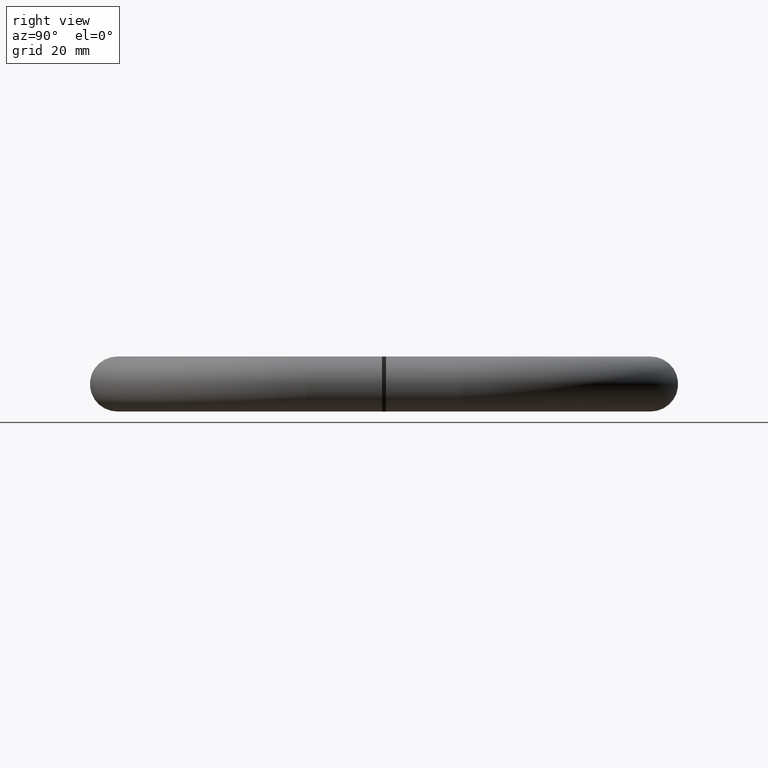
[diagram: clean part render]
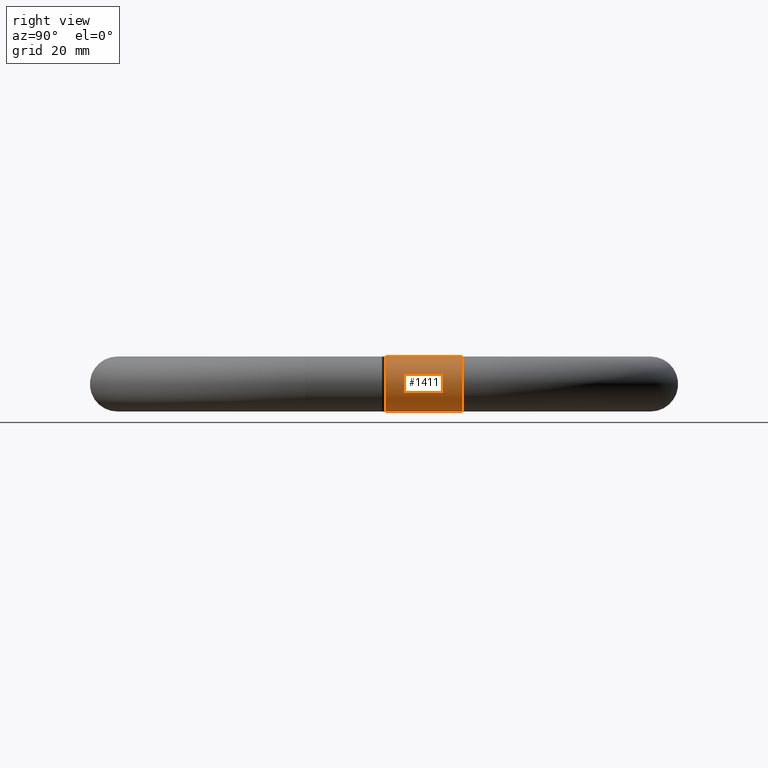
[diagram: same view with one face highlighted and labeled with its STEP entity id]
A machine part, right view. The second image highlights one B-rep face of the part: STEP entity #1411.
In plain terms, the highlighted cylindrical surface (bore or boss wall) has radius 7 mm, axis along (0, -1, 0).
Its self-contained STEP definition (entity closure, byte-faithful):
#204 = AXIS2_PLACEMENT_3D ( 'NONE', #3378, #9660, #8041 ) ;
#212 = CIRCLE ( 'NONE', #7439, 7.000000000000000000 ) ;
#643 = CARTESIAN_POINT ( 'NONE',  ( 48.00000000000000000, 75.50000000000000000, 0.0000000000000000000 ) ) ;
#807 = AXIS2_PLACEMENT_3D ( 'NONE', #7625, #8362, #3687 ) ;
#1076 = EDGE_LOOP ( 'NONE', ( #7927 ) ) ;
#1375 = EDGE_CURVE ( 'NONE', #4075, #4075, #212, .T. ) ;
#1411 = ADVANCED_FACE ( 'NONE', ( #8281, #10078 ), #1934, .T. ) ;
#1512 = CIRCLE ( 'NONE', #204, 7.000000000000000000 ) ;
#1686 = CARTESIAN_POINT ( 'NONE',  ( 48.00000000000000000, 75.50000000000000000, 7.000000000000000000 ) ) ;
#1934 = CYLINDRICAL_SURFACE ( 'NONE', #807, 7.000000000000000000 ) ;
#3378 = CARTESIAN_POINT ( 'NONE',  ( 48.00000000000000000, 95.00000000000001400, 0.0000000000000000000 ) ) ;
#3687 = DIRECTION ( 'NONE',  ( 0.0000000000000000000, 0.0000000000000000000, -1.000000000000000000 ) ) ;
#3957 = CARTESIAN_POINT ( 'NONE',  ( 48.00000000000000000, 95.00000000000001400, -7.000000000000000000 ) ) ;
#4075 = VERTEX_POINT ( 'NONE', #1686 ) ;
#5729 = ORIENTED_EDGE ( 'NONE', *, *, #9685, .F. ) ;
#5902 = EDGE_LOOP ( 'NONE', ( #5729 ) ) ;
#6113 = DIRECTION ( 'NONE',  ( 0.0000000000000000000, 0.0000000000000000000, 1.000000000000000000 ) ) ;
#7381 = VERTEX_POINT ( 'NONE', #3957 ) ;
#7439 = AXIS2_PLACEMENT_3D ( 'NONE', #643, #9161, #6113 ) ;
#7625 = CARTESIAN_POINT ( 'NONE',  ( 48.00000000000000000, 95.00000000000001400, 0.0000000000000000000 ) ) ;
#7927 = ORIENTED_EDGE ( 'NONE', *, *, #1375, .T. ) ;
#8041 = DIRECTION ( 'NONE',  ( 0.0000000000000000000, 0.0000000000000000000, -1.000000000000000000 ) ) ;
#8281 = FACE_OUTER_BOUND ( 'NONE', #1076, .T. ) ;
#8362 = DIRECTION ( 'NONE',  ( 0.0000000000000000000, -1.000000000000000000, 0.0000000000000000000 ) ) ;
#9161 = DIRECTION ( 'NONE',  ( 0.0000000000000000000, 1.000000000000000000, 0.0000000000000000000 ) ) ;
#9660 = DIRECTION ( 'NONE',  ( -1.836970198721029700E-016, 1.000000000000000000, 0.0000000000000000000 ) ) ;
#9685 = EDGE_CURVE ( 'NONE', #7381, #7381, #1512, .T. ) ;
#10078 = FACE_OUTER_BOUND ( 'NONE', #5902, .T. ) ;